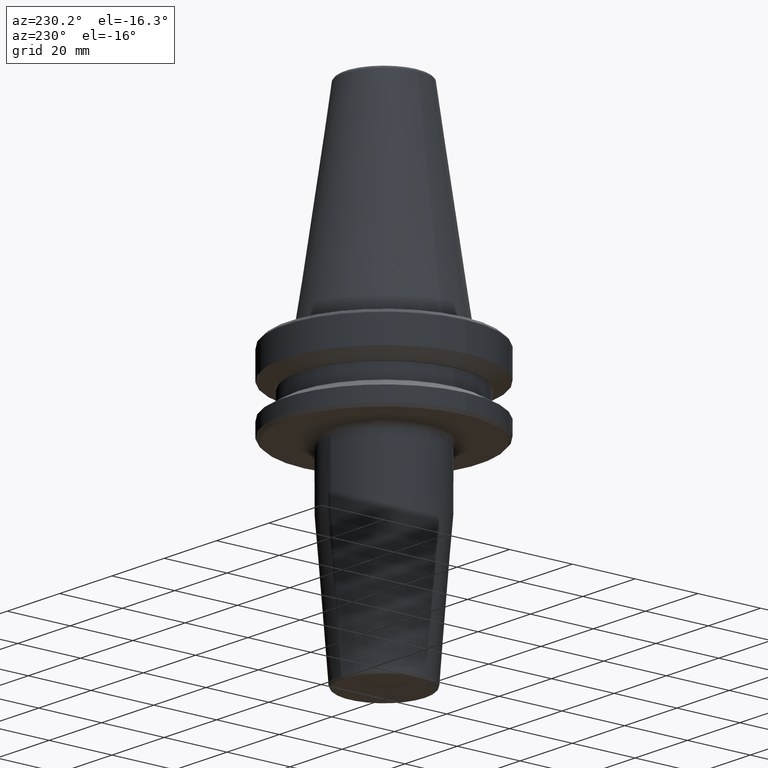
[diagram: clean part render]
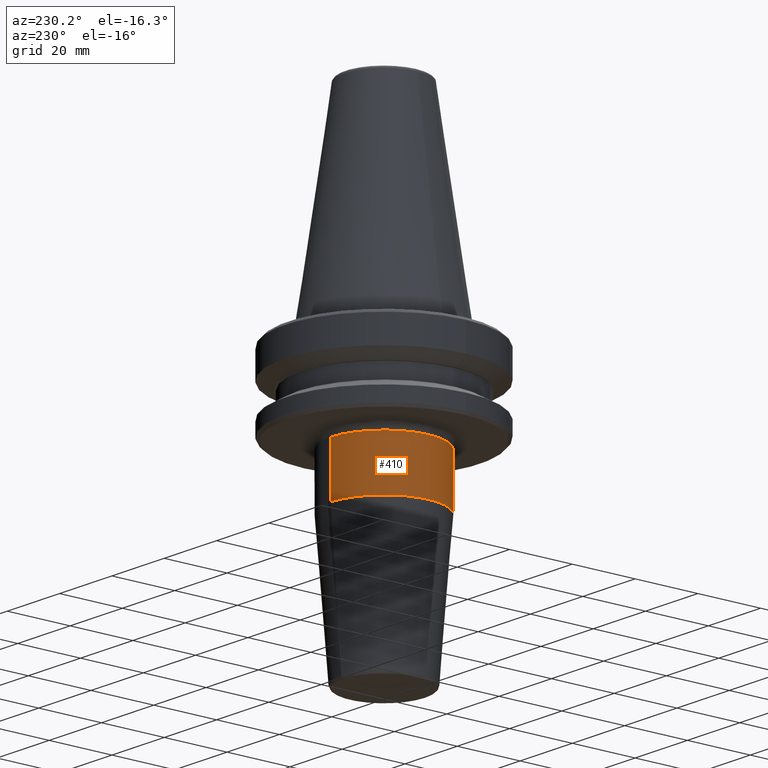
[diagram: same view with one face highlighted and labeled with its STEP entity id]
A machine part, auxiliary view. The second image highlights one B-rep face of the part: STEP entity #410.
In plain terms, the highlighted cylindrical surface (partial cylindrical patch) has radius 17 mm, axis along (-0, 0, -1).
Its self-contained STEP definition (entity closure, byte-faithful):
#4 = VECTOR ( 'NONE', #135, 1000.000000000000000 ) ;
#27 = EDGE_LOOP ( 'NONE', ( #710, #860, #307, #1053, #780 ) ) ;
#28 = CIRCLE ( 'NONE', #447, 17.00000000000000000 ) ;
#34 = DIRECTION ( 'NONE',  ( 0.0000000000000000000, 0.0000000000000000000, -1.000000000000000000 ) ) ;
#70 = AXIS2_PLACEMENT_3D ( 'NONE', #1071, #181, #197 ) ;
#92 = VERTEX_POINT ( 'NONE', #272 ) ;
#127 = EDGE_CURVE ( 'NONE', #92, #928, #1036, .T. ) ;
#135 = DIRECTION ( 'NONE',  ( -0.0000000000000000000, 2.332660569804487100E-017, -1.000000000000000000 ) ) ;
#141 = VECTOR ( 'NONE', #1183, 1000.000000000000000 ) ;
#181 = DIRECTION ( 'NONE',  ( -0.0000000000000000000, 2.332660569804487100E-017, -1.000000000000000000 ) ) ;
#197 = DIRECTION ( 'NONE',  ( 0.0000000000000000000, 1.000000000000000000, 0.0000000000000000000 ) ) ;
#229 = EDGE_CURVE ( 'NONE', #1137, #92, #1195, .T. ) ;
#272 = CARTESIAN_POINT ( 'NONE',  ( 0.0000000000000000000, 17.00000000000000000, -29.00000000000000400 ) ) ;
#273 = DIRECTION ( 'NONE',  ( -1.000000000000000000, 0.0000000000000000000, 0.0000000000000000000 ) ) ;
#280 = CARTESIAN_POINT ( 'NONE',  ( 0.0000000000000000000, 4.665321139608974800E-017, -29.00000000000000400 ) ) ;
#307 = ORIENTED_EDGE ( 'NONE', *, *, #229, .T. ) ;
#321 = CARTESIAN_POINT ( 'NONE',  ( 0.0000000000000000000, 4.665321139608974800E-017, -29.00000000000000400 ) ) ;
#373 = CARTESIAN_POINT ( 'NONE',  ( -17.00000000000000000, 4.665321139608974800E-017, -29.00000000000000400 ) ) ;
#379 = CARTESIAN_POINT ( 'NONE',  ( 2.081899558550500700E-015, 17.00000000000000000, -45.52828342338439400 ) ) ;
#410 = ADVANCED_FACE ( 'NONE', ( #779 ), #1278, .T. ) ;
#435 = CIRCLE ( 'NONE', #1231, 17.00000000000000000 ) ;
#444 = CARTESIAN_POINT ( 'NONE',  ( 0.0000000000000000000, 17.00000000000000000, -90.00000000000000000 ) ) ;
#447 = AXIS2_PLACEMENT_3D ( 'NONE', #280, #34, #273 ) ;
#494 = CARTESIAN_POINT ( 'NONE',  ( 0.0000000000000000000, 4.322019616789088000E-016, -45.52828342338439400 ) ) ;
#581 = CARTESIAN_POINT ( 'NONE',  ( 0.0000000000000000000, -17.00000000000000000, -45.52828342338439400 ) ) ;
#638 = VERTEX_POINT ( 'NONE', #664 ) ;
#664 = CARTESIAN_POINT ( 'NONE',  ( 2.081899558550500300E-015, -17.00000000000000000, -29.00000000000000400 ) ) ;
#684 = DIRECTION ( 'NONE',  ( -0.0000000000000000000, 2.332660569804487100E-017, -1.000000000000000000 ) ) ;
#710 = ORIENTED_EDGE ( 'NONE', *, *, #907, .F. ) ;
#739 = DIRECTION ( 'NONE',  ( 0.0000000000000000000, 0.0000000000000000000, -1.000000000000000000 ) ) ;
#773 = EDGE_CURVE ( 'NONE', #638, #1137, #28, .T. ) ;
#779 = FACE_OUTER_BOUND ( 'NONE', #27, .T. ) ;
#780 = ORIENTED_EDGE ( 'NONE', *, *, #1162, .F. ) ;
#860 = ORIENTED_EDGE ( 'NONE', *, *, #773, .T. ) ;
#868 = AXIS2_PLACEMENT_3D ( 'NONE', #321, #739, #1157 ) ;
#877 = DIRECTION ( 'NONE',  ( 0.0000000000000000000, 1.000000000000000000, 0.0000000000000000000 ) ) ;
#907 = EDGE_CURVE ( 'NONE', #638, #1089, #1180, .T. ) ;
#928 = VERTEX_POINT ( 'NONE', #379 ) ;
#1036 = LINE ( 'NONE', #444, #4 ) ;
#1053 = ORIENTED_EDGE ( 'NONE', *, *, #127, .T. ) ;
#1071 = CARTESIAN_POINT ( 'NONE',  ( 0.0000000000000000000, 1.469576158976826700E-015, -90.00000000000000000 ) ) ;
#1089 = VERTEX_POINT ( 'NONE', #581 ) ;
#1102 = CARTESIAN_POINT ( 'NONE',  ( 2.081899558550500300E-015, -17.00000000000000000, -90.00000000000000000 ) ) ;
#1137 = VERTEX_POINT ( 'NONE', #373 ) ;
#1157 = DIRECTION ( 'NONE',  ( -1.000000000000000000, 0.0000000000000000000, 0.0000000000000000000 ) ) ;
#1162 = EDGE_CURVE ( 'NONE', #1089, #928, #435, .T. ) ;
#1180 = LINE ( 'NONE', #1102, #141 ) ;
#1183 = DIRECTION ( 'NONE',  ( -0.0000000000000000000, 2.332660569804487100E-017, -1.000000000000000000 ) ) ;
#1195 = CIRCLE ( 'NONE', #868, 17.00000000000000000 ) ;
#1231 = AXIS2_PLACEMENT_3D ( 'NONE', #494, #684, #877 ) ;
#1278 = CYLINDRICAL_SURFACE ( 'NONE', #70, 17.00000000000000000 ) ;